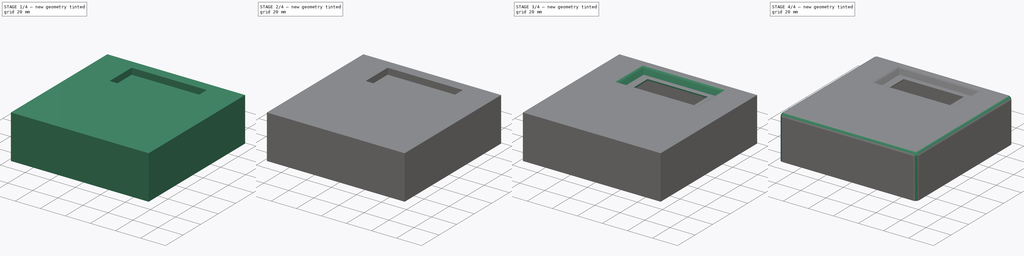
[diagram: build sequence overview — one tinted view per stage of 4, left to right]
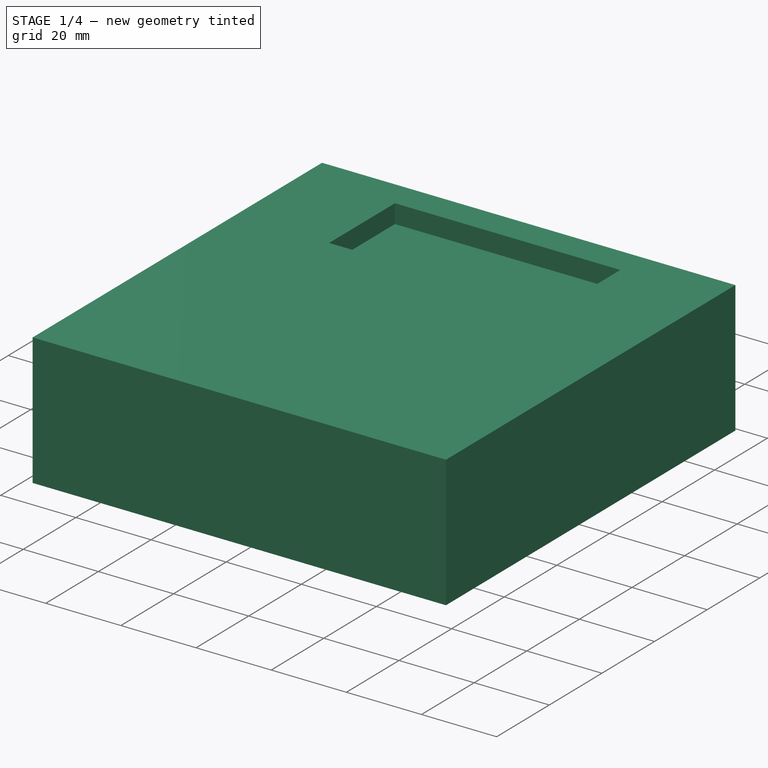
[diagram: stage 1 of 4 — iso view after this stage's code; geometry added in this stage tinted green]
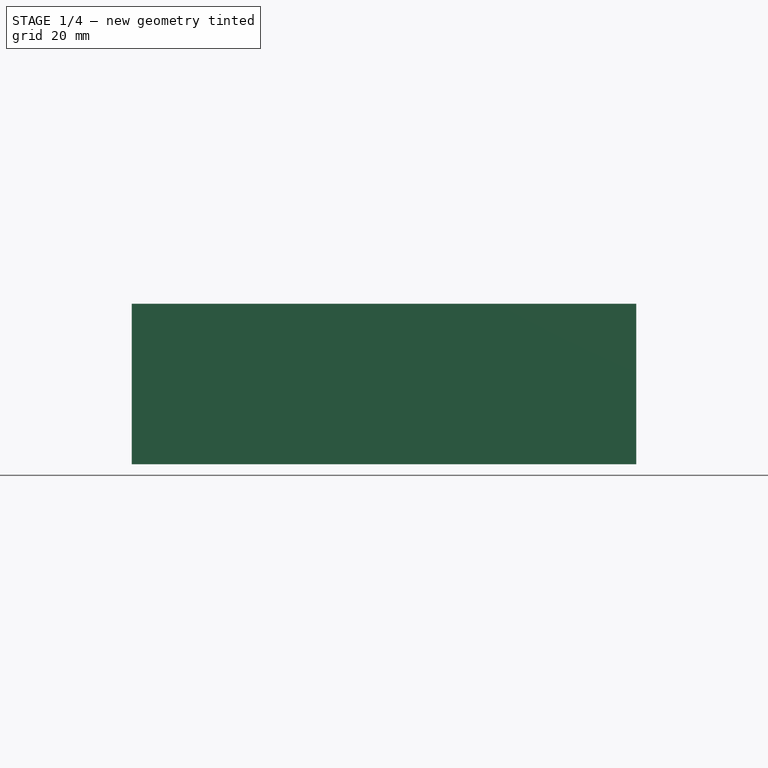
[diagram: stage 1 of 4 — front view after this stage's code; geometry added in this stage tinted green]
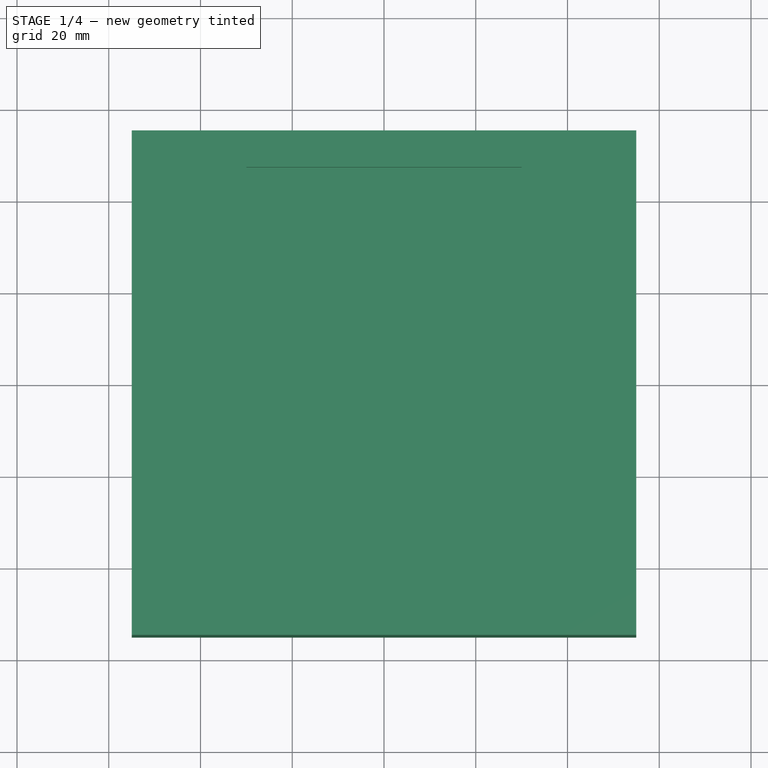
[diagram: stage 1 of 4 — top view after this stage's code; geometry added in this stage tinted green]
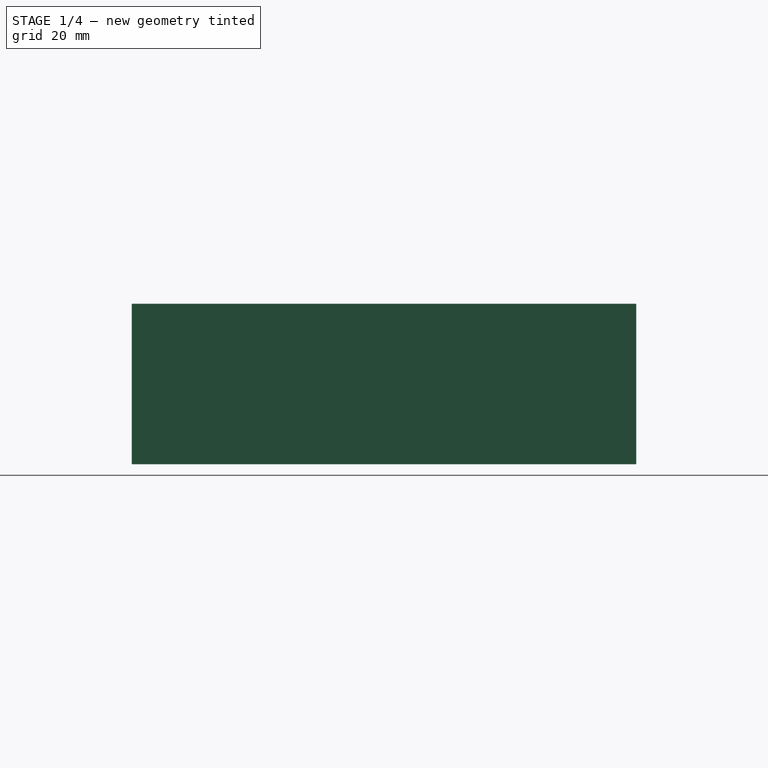
[diagram: stage 1 of 4 — right view after this stage's code; geometry added in this stage tinted green]
FCSTD DOCUMENT  (FreeCAD 0.21R33694 (Git))
Label: Veroboard housing
License: All rights reserved
LicenseURL: http://en.wikipedia.org/wiki/All_rights_reserved
objects: Sketcher::SketchObject×6, PartDesign::Pocket×4, PartDesign::LinearPattern×4, PartDesign::Pad×2, PartDesign::MultiTransform×2, PartDesign::Fillet×2, PartDesign::Thickness×1, PartDesign::Draft×1, PartDesign::Body×1
note: 33 computed .brp shape members not serialized (recipe doc carries the construction recipe); baked Part::Feature solids carry a one-line shape summary decoded from their .brp

FEATURE [Sketcher::SketchObject] Sketch
  FullyConstrained = true
  MapMode = 5
  Support = -> [XY_Plane]
  sketch-geometry (4):
    g0: LineSegment StartX=-55 StartY=55 StartZ=0 EndX=55 EndY=55 EndZ=0
    g1: LineSegment StartX=55 StartY=55 StartZ=0 EndX=55 EndY=-55 EndZ=0
    g2: LineSegment StartX=55 StartY=-55 StartZ=0 EndX=-55 EndY=-55 EndZ=0
    g3: LineSegment StartX=-55 StartY=-55 StartZ=0 EndX=-55 EndY=55 EndZ=0
  constraints (11):
    c: Coincident(g0,g1)
    c: Coincident(g1,g2)
    c: Coincident(g2,g3)
    c: Coincident(g3,g0)
    c: Horizontal(g0)
    c: Horizontal(g2)
    c: Vertical(g1)
    c: Vertical(g3)
    c: Symmetric(g0,g1,g-1)
    c: Distance(g0) = 110
    c: Equal(g0,g3)
FEATURE [PartDesign::Pad] Pad
  Direction = (0,0,1)
  Length = 35
  Length2 = 10
  Profile = -> Sketch
  ReferenceAxis = -> Sketch [N_Axis]
  Type = 0
FEATURE [Sketcher::SketchObject] Sketch001
  FullyConstrained = true
  MapMode = 5
  Placement = pos=(0,0,35) rot=(0,0,1;0rad)
  Support = -> [Pad]
  sketch-geometry (4):
    g0: LineSegment StartX=-30 StartY=47 StartZ=0 EndX=30 EndY=47 EndZ=0
    g1: LineSegment StartX=30 StartY=47 StartZ=0 EndX=30 EndY=22 EndZ=0
    g2: LineSegment StartX=30 StartY=22 StartZ=0 EndX=-30 EndY=22 EndZ=0
    g3: LineSegment StartX=-30 StartY=22 StartZ=0 EndX=-30 EndY=47 EndZ=0
  constraints (11):
    c: Coincident(g0,g1)
    c: Coincident(g1,g2)
    c: Coincident(g2,g3)
    c: Coincident(g3,g0)
    c: Horizontal(g0)
    c: Vertical(g1)
    c: Vertical(g3)
    c: DistanceX(g0,g0) = 60
    c: DistanceY(g3,g3) = 25
    c: Symmetric(g1,g2,g-2)
    c: DistanceY(g-1,g0) = 47
FEATURE [PartDesign::Pocket] Pocket
  BaseFeature = -> Pad
  Direction = (0,0,-1)
  Length = 5
  Length2 = 5
  Profile = -> Sketch001
  ReferenceAxis = -> Sketch001 [N_Axis]
  Type = 0
FEATURE [PartDesign::Thickness] Thickness
  Base = -> Pocket [Face4]
  BaseFeature = -> Pocket
  Intersection = false
  Join = 0
  Mode = 0
  Reversed = true
  SupportTransform = false
  Value = 2.5
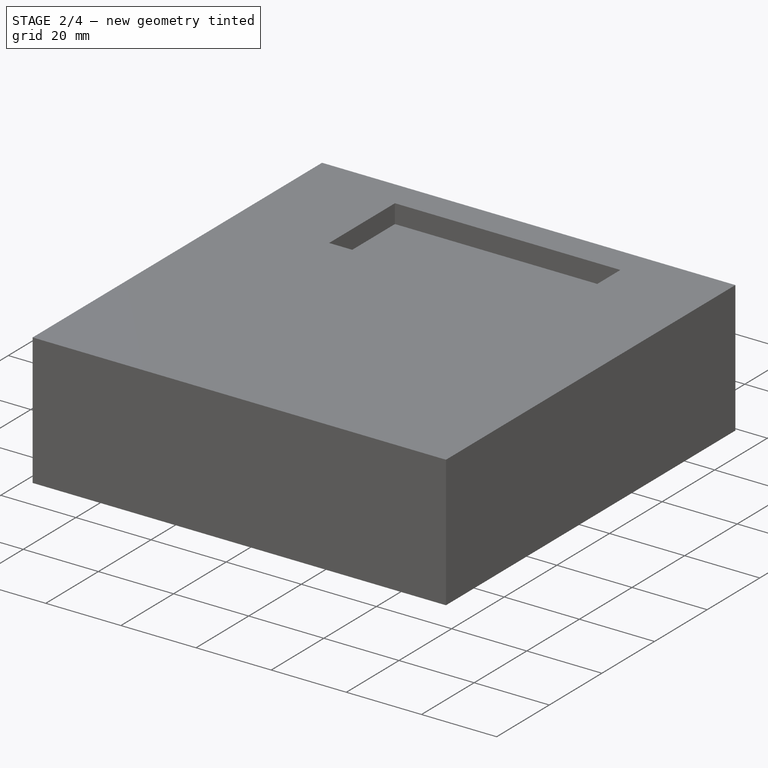
[diagram: stage 2 of 4 — iso view after this stage's code; geometry added in this stage tinted green]
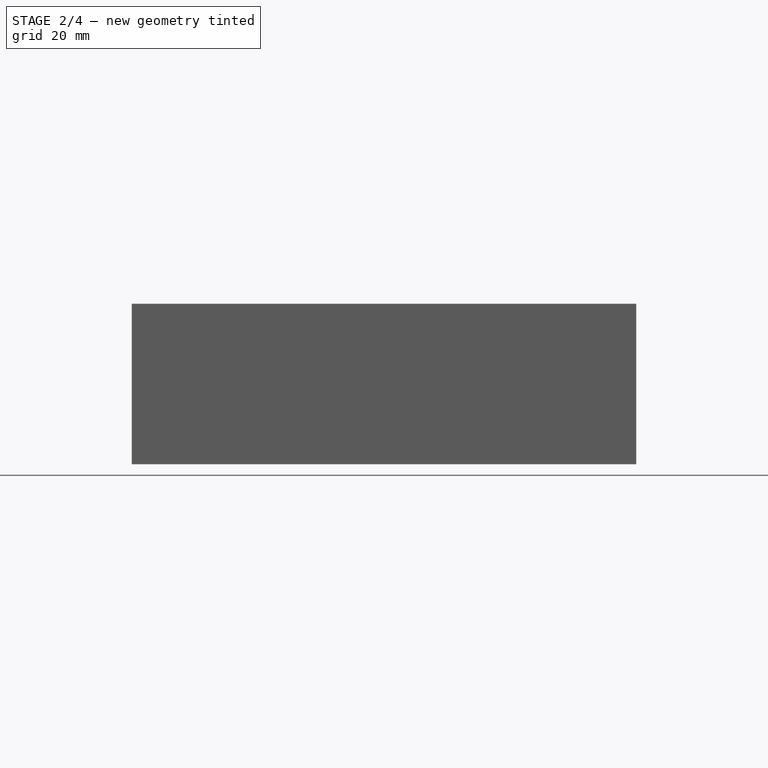
[diagram: stage 2 of 4 — front view after this stage's code; geometry added in this stage tinted green]
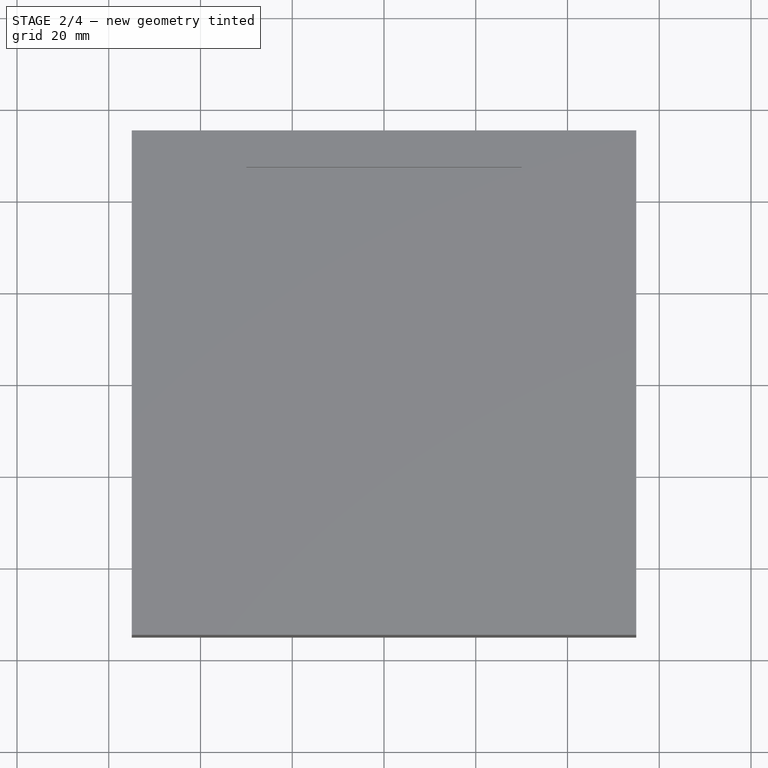
[diagram: stage 2 of 4 — top view after this stage's code; geometry added in this stage tinted green]
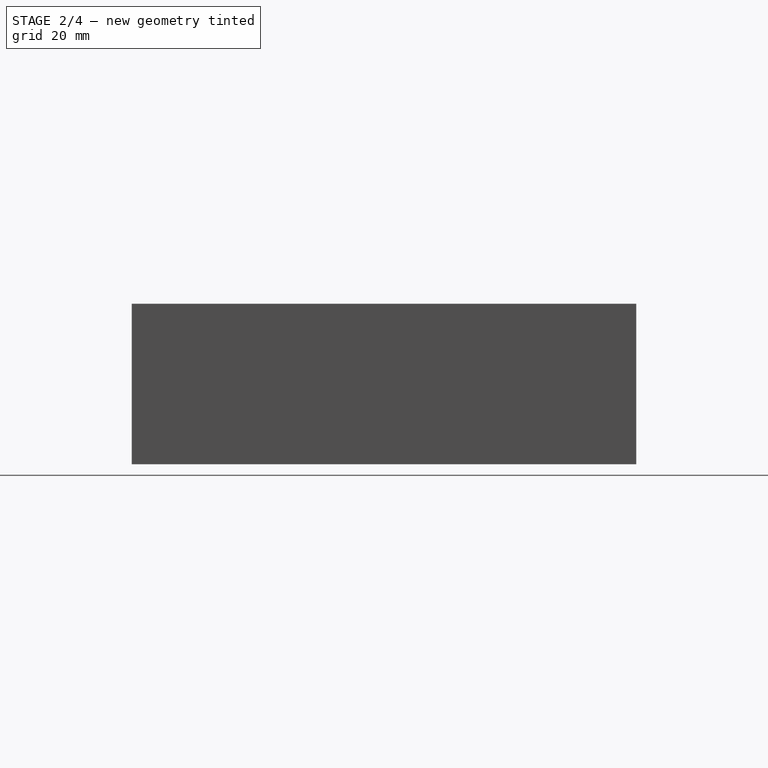
[diagram: stage 2 of 4 — right view after this stage's code; geometry added in this stage tinted green]
FEATURE [Sketcher::SketchObject] Sketch002
  FullyConstrained = true
  MapMode = 5
  Placement = pos=(0,0,32.5) rot=(1,0,0;3.14159rad)
  Support = -> [Thickness]
  sketch-geometry (1):
    g0: Circle CenterX=-48 CenterY=-41 CenterZ=0 NormalX=0 NormalY=0 NormalZ=1 AngleXU=0 Radius=3.25
  constraints (3):
    c: Diameter(g0) = 6.5
    c: DistanceY(g0,g-1) = 41
    c: DistanceX(g0,g-1) = 48
FEATURE [PartDesign::Pad] Pad001
  BaseFeature = -> Thickness
  Direction = (0,0,-1)
  Length = 17.5
  Length2 = 10
  Profile = -> Sketch002
  ReferenceAxis = -> Sketch002 [N_Axis]
  Type = 0
FEATURE [PartDesign::LinearPattern] LinearPattern
  Direction = -> Sketch002 [H_Axis]
  Length = 96
  Occurrences = 2
FEATURE [PartDesign::LinearPattern] LinearPattern001
  Direction = -> Sketch002 [V_Axis]
  Length = 82
  Occurrences = 2
FEATURE [PartDesign::MultiTransform] MultiTransform
  BaseFeature = -> Pad001
  Originals = -> [Pad001]
  Transformations = -> [LinearPattern,LinearPattern001]
FEATURE [Sketcher::SketchObject] Sketch003
  ExternalGeometry = -> [MultiTransform]
  FullyConstrained = true
  MapMode = 5
  Placement = pos=(0,0,27.5) rot=(1,0,0;3.14159rad)
  Support = -> [MultiTransform]
  sketch-geometry (4):
    g0: LineSegment StartX=-26.5 StartY=-24.5 StartZ=0 EndX=26.5 EndY=-24.5 EndZ=0
    g1: LineSegment StartX=26.5 StartY=-24.5 StartZ=0 EndX=26.5 EndY=-44.5 EndZ=0
    g2: LineSegment StartX=26.5 StartY=-44.5 StartZ=0 EndX=-26.5 EndY=-44.5 EndZ=0
    g3: LineSegment StartX=-26.5 StartY=-44.5 StartZ=0 EndX=-26.5 EndY=-24.5 EndZ=0
  constraints (11):
    c: Coincident(g0,g1)
    c: Coincident(g1,g2)
    c: Coincident(g2,g3)
    c: Coincident(g3,g0)
    c: Horizontal(g2)
    c: Vertical(g1)
    c: Vertical(g3)
    c: Symmetric(g0,g0,g-2)
    c: DistanceX(g0,g0) = 53
    c: DistanceY(g3,g3) = 20
    c: DistanceY(g0,g-3) = 2.5
FEATURE [PartDesign::Pocket] Pocket001
  BaseFeature = -> MultiTransform
  Direction = (0,0,1)
  Length = 1.5
  Length2 = 5
  Profile = -> Sketch003
  ReferenceAxis = -> Sketch003 [N_Axis]
  Type = 0
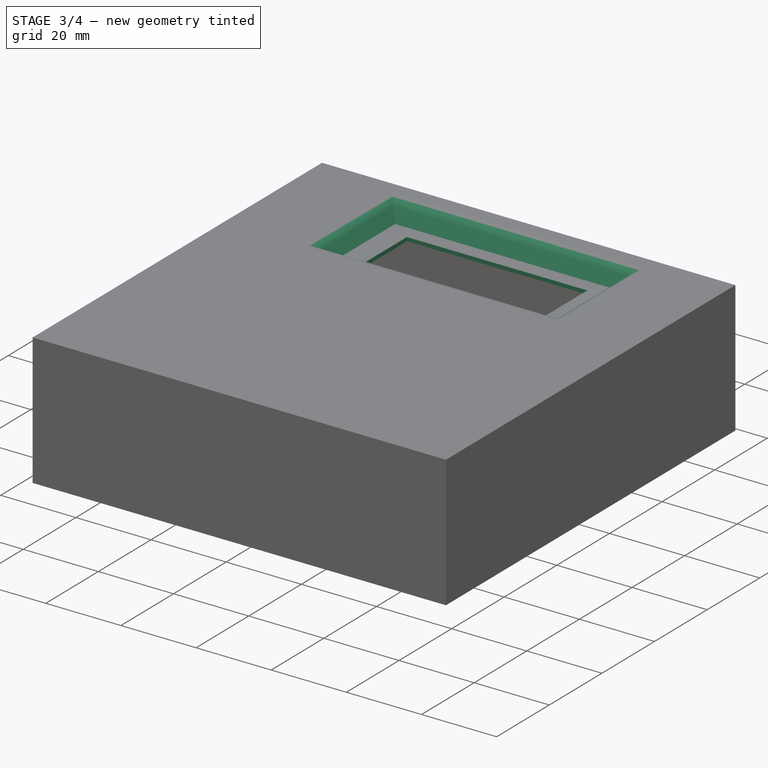
[diagram: stage 3 of 4 — iso view after this stage's code; geometry added in this stage tinted green]
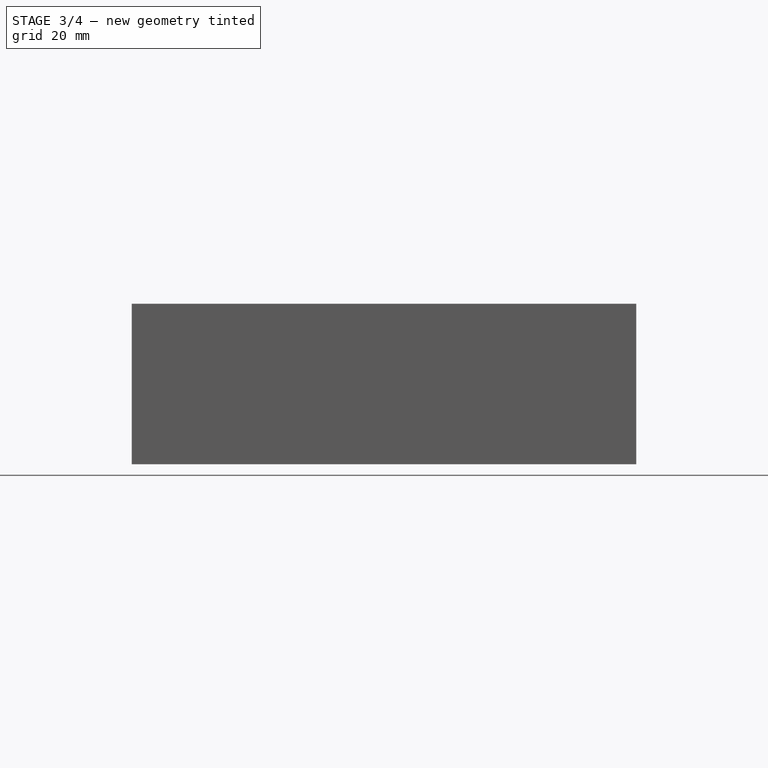
[diagram: stage 3 of 4 — front view after this stage's code; geometry added in this stage tinted green]
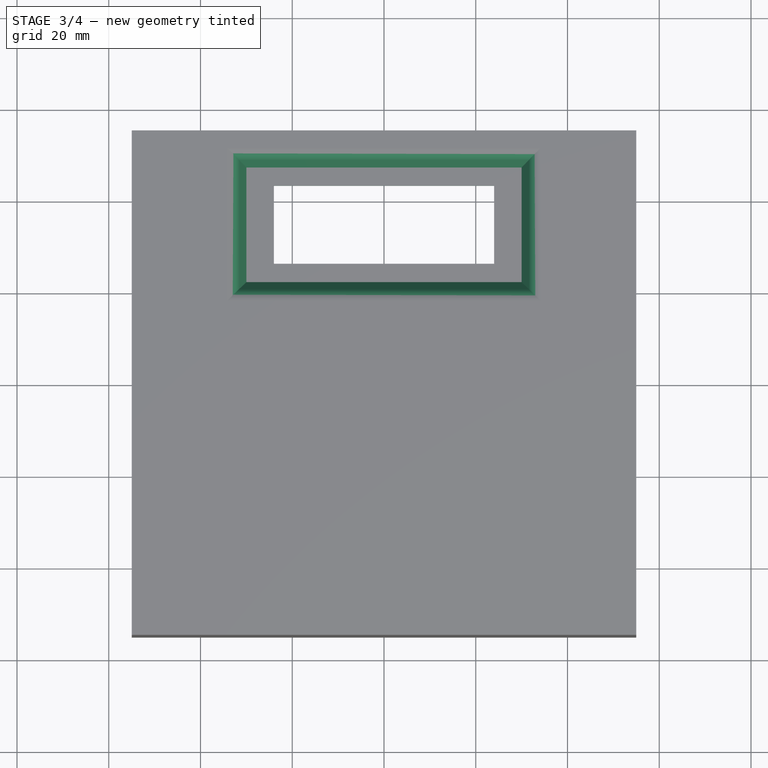
[diagram: stage 3 of 4 — top view after this stage's code; geometry added in this stage tinted green]
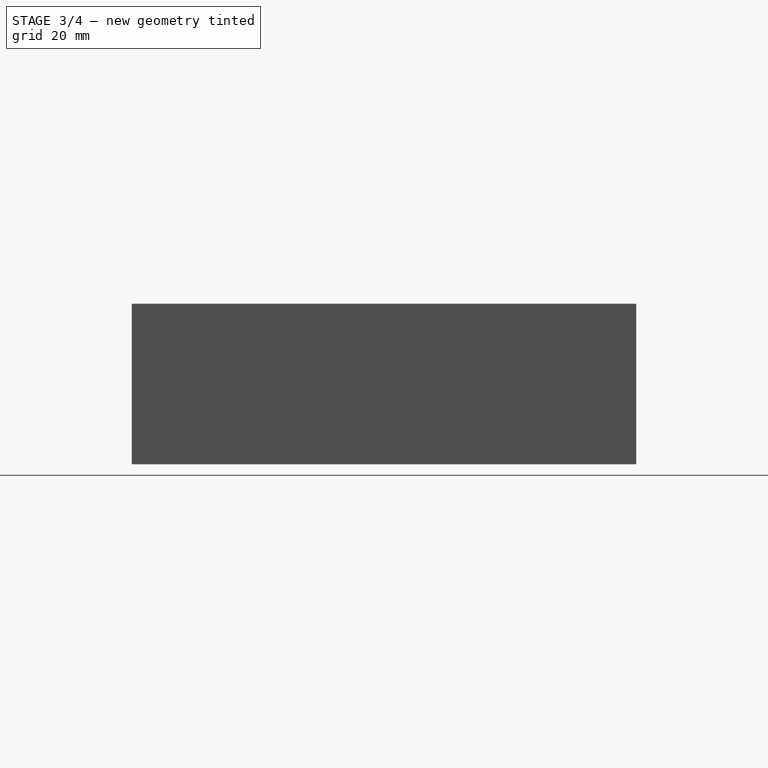
[diagram: stage 3 of 4 — right view after this stage's code; geometry added in this stage tinted green]
FEATURE [Sketcher::SketchObject] Sketch004
  ExternalGeometry = -> [Pocket001]
  FullyConstrained = true
  MapMode = 5
  Placement = pos=(0,0,29) rot=(1,0,0;3.14159rad)
  Support = -> [Pocket001]
  sketch-geometry (4):
    g0: LineSegment StartX=-24 StartY=-26 StartZ=0 EndX=24 EndY=-26 EndZ=0
    g1: LineSegment StartX=24 StartY=-26 StartZ=0 EndX=24 EndY=-43 EndZ=0
    g2: LineSegment StartX=24 StartY=-43 StartZ=0 EndX=-24 EndY=-43 EndZ=0
    g3: LineSegment StartX=-24 StartY=-43 StartZ=0 EndX=-24 EndY=-26 EndZ=0
  constraints (11):
    c: Coincident(g0,g1)
    c: Coincident(g1,g2)
    c: Coincident(g2,g3)
    c: Coincident(g3,g0)
    c: Horizontal(g2)
    c: Vertical(g1)
    c: Vertical(g3)
    c: DistanceY(g1,g1) = 17
    c: DistanceX(g0,g0) = 48
    c: Symmetric(g0,g0,g-2)
    c: Distance(g0,g-3) = 1.5
FEATURE [PartDesign::Pocket] Pocket002
  BaseFeature = -> Pocket001
  Direction = (0,0,1)
  Length = 5
  Length2 = 5
  Profile = -> Sketch004
  ReferenceAxis = -> Sketch004 [N_Axis]
  Type = 1
FEATURE [PartDesign::Draft] Draft
  Angle = 25
  Base = -> Pocket002 [Face14,Face11,Face12,Face13]
  BaseFeature = -> Pocket002
  NeutralPlane = -> Pocket002 [Face16]
  SupportTransform = false
FEATURE [PartDesign::Fillet] Fillet
  Base = -> Draft [Edge18,Edge17,Edge20,Edge19]
  BaseFeature = -> Draft
  Radius = 3
  SupportTransform = false
  UseAllEdges = false
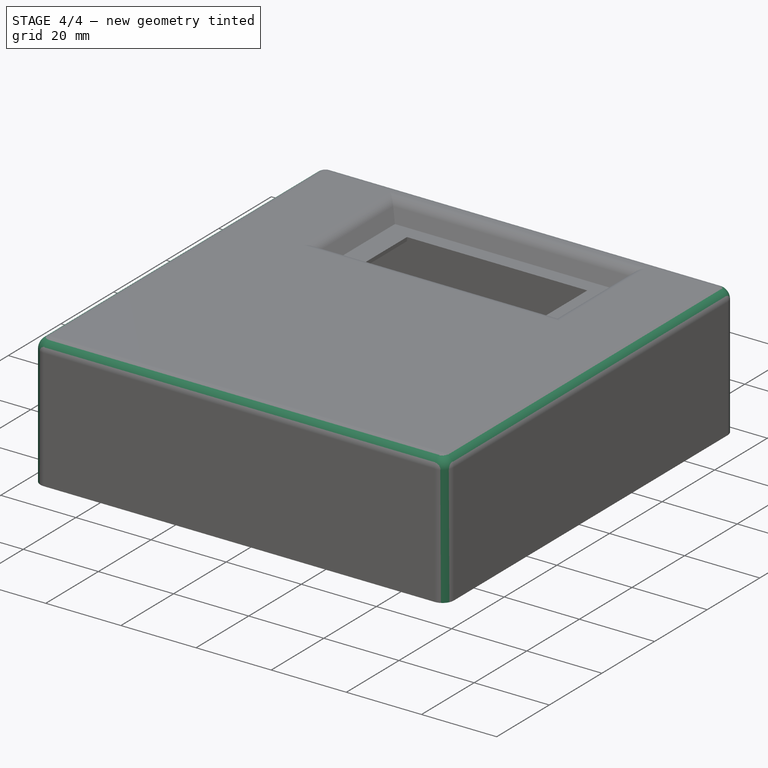
[diagram: stage 4 of 4 — iso view after this stage's code; geometry added in this stage tinted green]
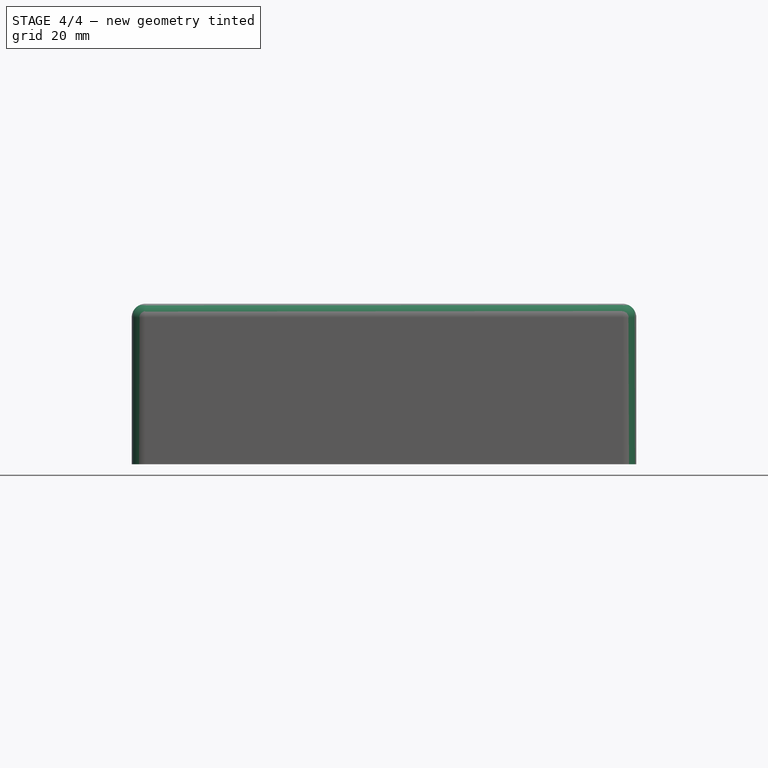
[diagram: stage 4 of 4 — front view after this stage's code; geometry added in this stage tinted green]
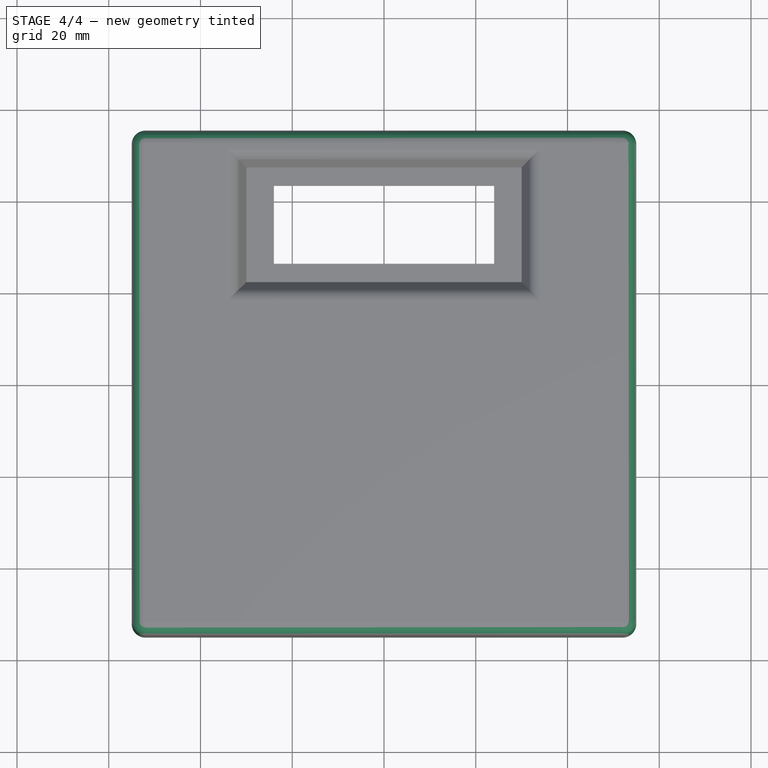
[diagram: stage 4 of 4 — top view after this stage's code; geometry added in this stage tinted green]
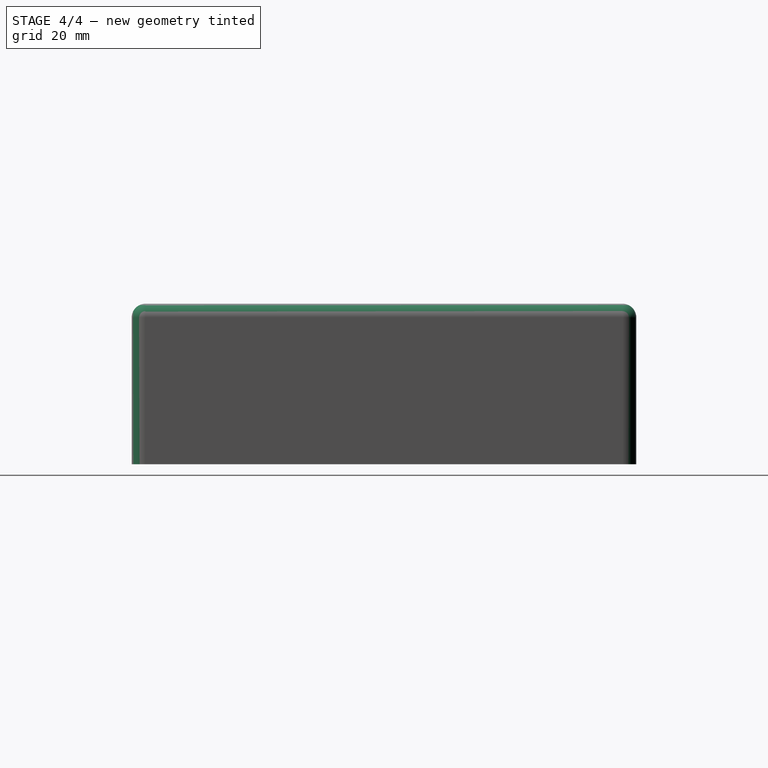
[diagram: stage 4 of 4 — right view after this stage's code; geometry added in this stage tinted green]
FEATURE [PartDesign::Fillet] Fillet001
  Base = -> Fillet [Edge8,Edge20,Edge6,Edge5,Edge7,Edge22,Edge18,Edge17]
  BaseFeature = -> Fillet
  Radius = 3
  SupportTransform = false
  UseAllEdges = false
FEATURE [Sketcher::SketchObject] Sketch005
  ExternalGeometry = -> [Fillet001]
  FullyConstrained = true
  MapMode = 5
  Placement = pos=(0,0,15) rot=(1,0,0;3.14159rad)
  Support = -> [Fillet001]
  sketch-geometry (1):
    g0: Circle CenterX=-48 CenterY=-41 CenterZ=0 NormalX=0 NormalY=0 NormalZ=1 AngleXU=0 Radius=2.1
  constraints (2):
    c: Coincident(g0,g-3)
    c: Diameter(g0) = 4.2
FEATURE [PartDesign::Pocket] Pocket003
  BaseFeature = -> Fillet001
  Direction = (0,0,1)
  Length = 10
  Length2 = 5
  Profile = -> Sketch005
  ReferenceAxis = -> Sketch005 [N_Axis]
  Type = 0
FEATURE [PartDesign::LinearPattern] LinearPattern002
  Direction = -> Sketch005 [H_Axis]
  Length = 96
  Occurrences = 2
FEATURE [PartDesign::LinearPattern] LinearPattern003
  Direction = -> Sketch005 [V_Axis]
  Length = 82
  Occurrences = 2
FEATURE [PartDesign::MultiTransform] MultiTransform001
  BaseFeature = -> Pocket003
  Originals = -> [Pocket003]
  Transformations = -> [LinearPattern002,LinearPattern003]
FEATURE [PartDesign::Body] Body
  Group = -> [Sketch,Pad,Sketch001,Pocket,Thickness,Sketch002,Pad001,MultiTransform,LinearPattern,LinearPattern001,Sketch003,Pocket001,Sketch004,Pocket002,Draft,Fillet,Fillet001,Sketch005,Pocket003,MultiTransform001,LinearPattern002,LinearPattern003]
  Origin = -> Origin
  Tip = -> MultiTransform001
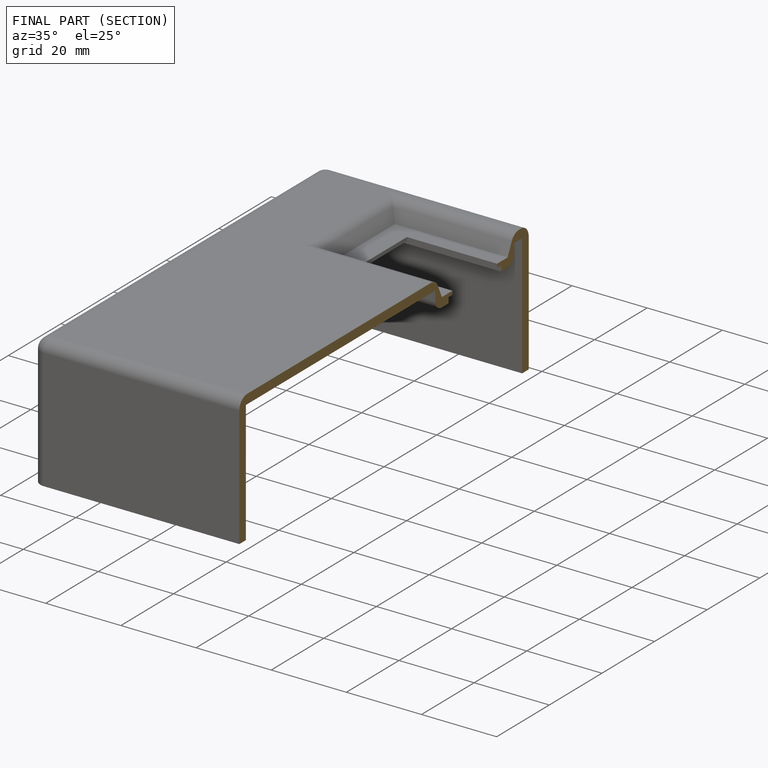
[diagram: finished part — half-section view (interior)]
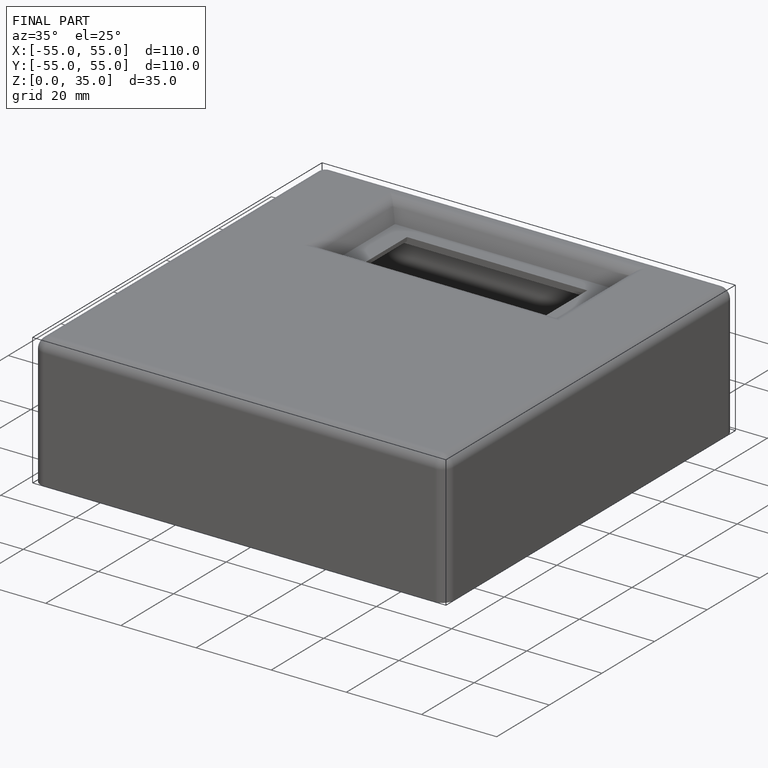
[diagram: finished part — iso view with bounding-box wireframe]
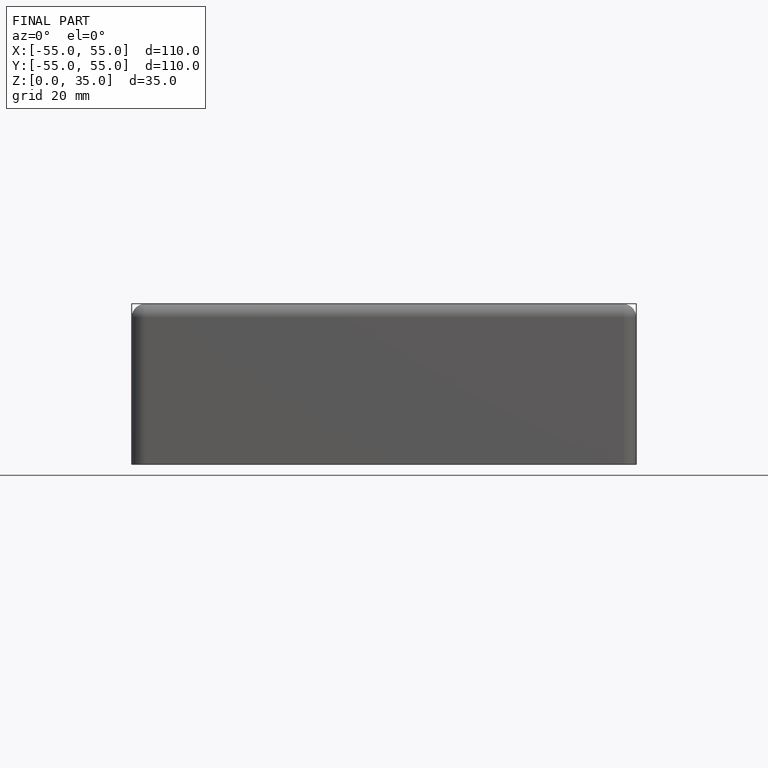
[diagram: finished part — front view with bounding-box wireframe]
